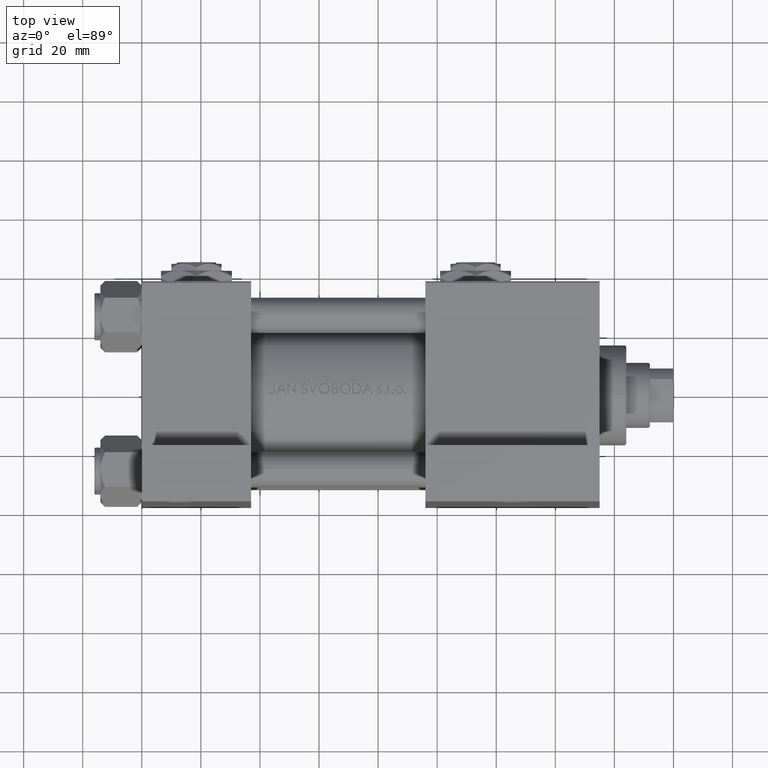
[diagram: clean part render]
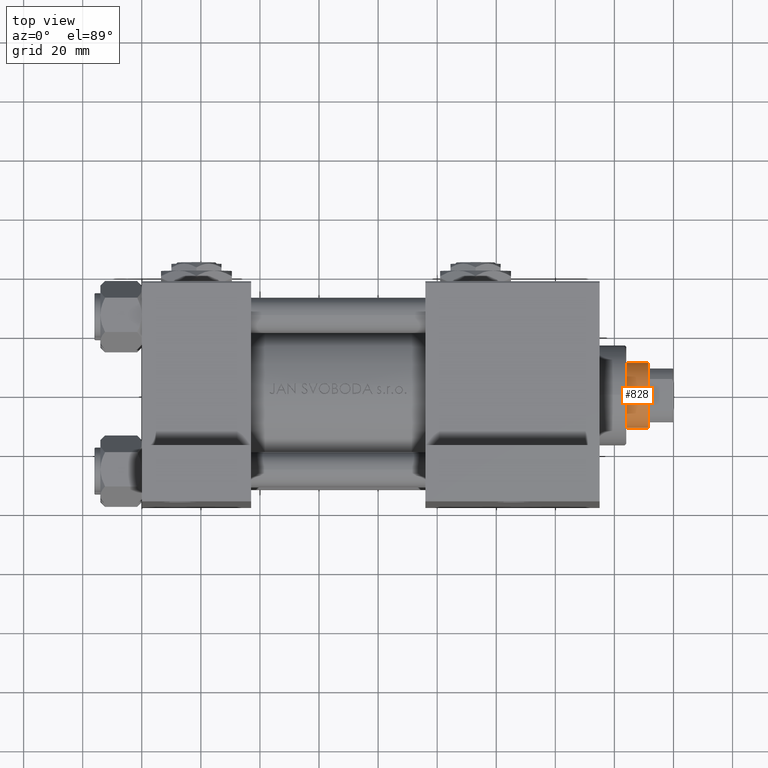
[diagram: same view with one face highlighted and labeled with its STEP entity id]
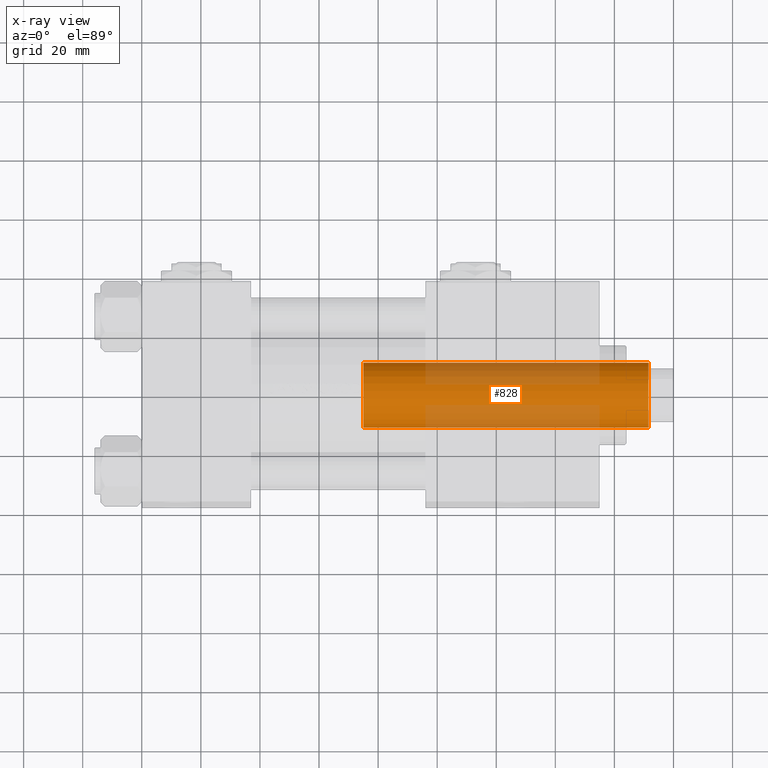
[diagram: x-ray of the same camera — body ghosted, the highlighted face saturated]
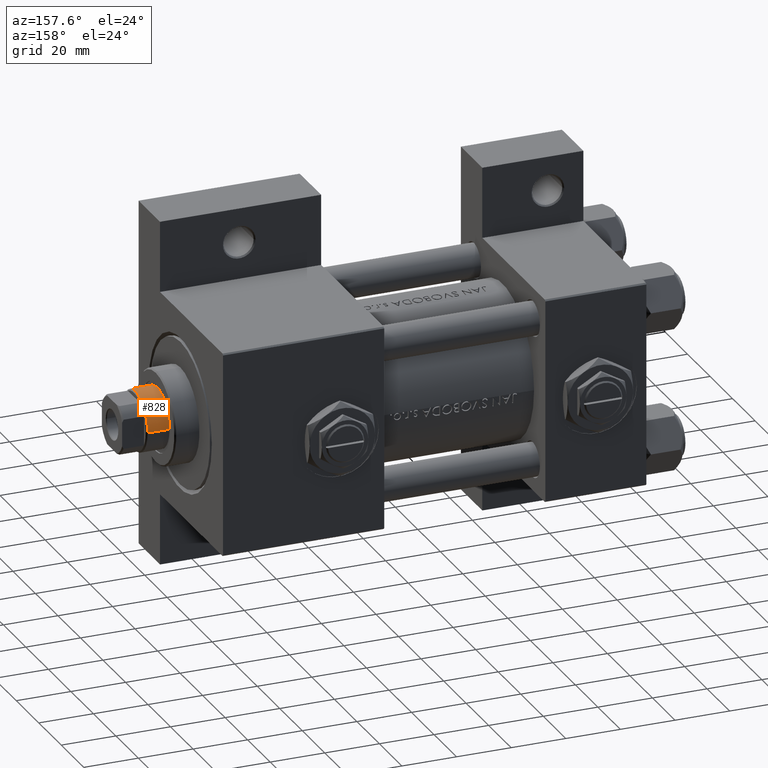
[diagram: same view with one face highlighted and labeled with its STEP entity id]
A machine part, top view. The second image highlights one B-rep face of the part: STEP entity #828.
The next image is the same camera in x-ray: the body ghosted, the highlighted face saturated — about 42% of this face is hidden behind the body in this view.
A second angle (auxiliary view) of the same face is appended — the face is thin or edge-on in the first view.
In plain terms, the highlighted cylindrical surface (edge-blend (fillet) strip) has radius 11 mm, axis along (-1, 0, 0).
Its self-contained STEP definition (entity closure, byte-faithful):
#828 = ADVANCED_FACE ( 'NONE', ( #23752 ), #27459, .T. ) ;
#853 = CARTESIAN_POINT ( 'NONE',  ( 11.00000000000000000, 1.347111479062088207E-15, 38.00000000000000000 ) ) ;
#5038 = DIRECTION ( 'NONE',  ( 1.000000000000000000, 0.000000000000000000, 0.000000000000000000 ) ) ;
#7410 = ORIENTED_EDGE ( 'NONE', *, *, #23039, .T. ) ;
#8067 = ORIENTED_EDGE ( 'NONE', *, *, #13265, .T. ) ;
#8874 = CARTESIAN_POINT ( 'NONE',  ( 11.00000000000000000, 1.347111479062088207E-15, 134.5000000000000568 ) ) ;
#9296 = CARTESIAN_POINT ( 'NONE',  ( 11.00000000000000000, 1.347111479062088207E-15, 135.0000000000000000 ) ) ;
#10847 = AXIS2_PLACEMENT_3D ( 'NONE', #19146, #11426, #44673 ) ;
#11426 = DIRECTION ( 'NONE',  ( 0.000000000000000000, 0.000000000000000000, -1.000000000000000000 ) ) ;
#11699 = VERTEX_POINT ( 'NONE', #8874 ) ;
#12818 = CARTESIAN_POINT ( 'NONE',  ( 0.000000000000000000, 0.000000000000000000, 135.0000000000000000 ) ) ;
#13265 = EDGE_CURVE ( 'NONE', #34166, #16188, #16564, .T. ) ;
#14733 = CARTESIAN_POINT ( 'NONE',  ( -11.00000000000000000, 0.000000000000000000, 134.5000000000000568 ) ) ;
#16188 = VERTEX_POINT ( 'NONE', #25810 ) ;
#16213 = CARTESIAN_POINT ( 'NONE',  ( 0.000000000000000000, 0.000000000000000000, 38.00000000000000000 ) ) ;
#16224 = EDGE_LOOP ( 'NONE', ( #30176, #7410, #8067, #44943 ) ) ;
#16564 = LINE ( 'NONE', #37973, #25683 ) ;
#16937 = VERTEX_POINT ( 'NONE', #853 ) ;
#19146 = CARTESIAN_POINT ( 'NONE',  ( 0.000000000000000000, 0.000000000000000000, 134.5000000000000568 ) ) ;
#19692 = AXIS2_PLACEMENT_3D ( 'NONE', #16213, #31345, #5038 ) ;
#20034 = DIRECTION ( 'NONE',  ( -0.000000000000000000, -0.000000000000000000, -1.000000000000000000 ) ) ;
#20485 = LINE ( 'NONE', #9296, #40463 ) ;
#23039 = EDGE_CURVE ( 'NONE', #11699, #34166, #28294, .T. ) ;
#23752 = FACE_OUTER_BOUND ( 'NONE', #16224, .T. ) ;
#24007 = DIRECTION ( 'NONE',  ( -0.000000000000000000, -0.000000000000000000, -1.000000000000000000 ) ) ;
#24236 = DIRECTION ( 'NONE',  ( -1.000000000000000000, 0.000000000000000000, 0.000000000000000000 ) ) ;
#25683 = VECTOR ( 'NONE', #24007, 1000.000000000000000 ) ;
#25810 = CARTESIAN_POINT ( 'NONE',  ( -11.00000000000000000, 0.000000000000000000, 38.00000000000000000 ) ) ;
#27459 = CYLINDRICAL_SURFACE ( 'NONE', #34230, 11.00000000000000000 ) ;
#28294 = CIRCLE ( 'NONE', #10847, 11.00000000000000000 ) ;
#30176 = ORIENTED_EDGE ( 'NONE', *, *, #48059, .F. ) ;
#30510 = EDGE_CURVE ( 'NONE', #16188, #16937, #34726, .T. ) ;
#31345 = DIRECTION ( 'NONE',  ( 0.000000000000000000, 0.000000000000000000, 1.000000000000000000 ) ) ;
#34166 = VERTEX_POINT ( 'NONE', #14733 ) ;
#34230 = AXIS2_PLACEMENT_3D ( 'NONE', #12818, #20034, #24236 ) ;
#34726 = CIRCLE ( 'NONE', #19692, 11.00000000000000000 ) ;
#37973 = CARTESIAN_POINT ( 'NONE',  ( -11.00000000000000000, 0.000000000000000000, 135.0000000000000000 ) ) ;
#40463 = VECTOR ( 'NONE', #46026, 1000.000000000000000 ) ;
#44673 = DIRECTION ( 'NONE',  ( 1.000000000000000000, 0.000000000000000000, 0.000000000000000000 ) ) ;
#44943 = ORIENTED_EDGE ( 'NONE', *, *, #30510, .T. ) ;
#46026 = DIRECTION ( 'NONE',  ( -0.000000000000000000, -0.000000000000000000, -1.000000000000000000 ) ) ;
#48059 = EDGE_CURVE ( 'NONE', #11699, #16937, #20485, .T. ) ;